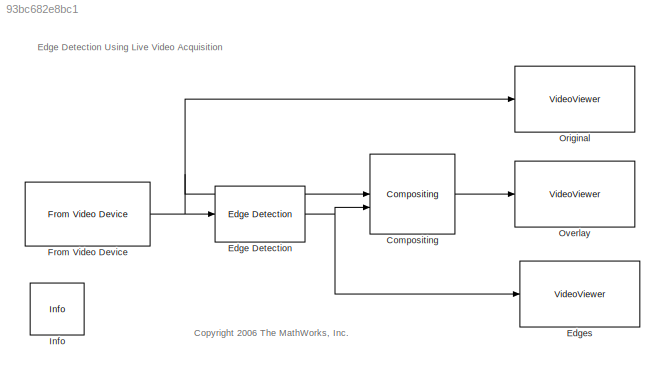
MODEL slx_93bc682e8bc1
KIND model
CONFIG AbsTol = auto
CONFIG EnableMultiTasking = on
CONFIG FixedStep = auto
CONFIG MaxStep = auto
CONFIG MinStep = auto
CONFIG RelTol = 1e-3
CONFIG SampleTimeConstraint = Unconstrained
CONFIG SolverName = FixedStepDiscrete
CONFIG StartTime = 0.0
CONFIG StopTime = inf
BLOCK [Reference] Compositing  REF=visiontextngfix/Compositing
  SourceBlock = visiontextngfix/Compositing
  SourceType = Compositing
BLOCK [Reference] Edge Detection  REF=visionanalysis/Edge Detection
  SourceBlock = visionanalysis/Edge Detection
  SourceType = Edge Detection
BLOCK [VideoViewer] Edges
  FigPos = [517 473 343 299]
  ScopeSpecificationString = vipscopes.VideoViewerScopeCfg('CurrentConfiguration', extmgr.ConfigurationSet(extmgr.Configuration('Core','General UI',true,'ShowSaveConfigSet',true,'FigureProperties',[],'MessageLogAutoOpenMode','for warn/fail messages'),extmgr.Configuration('Core','Source UI',true,'PlaybackToolbar',true),extmgr.Configuration('Sources','WiredSimulink',true),extmgr.Configuration('Sources','Simulink',false),extmgr....<+474ch>
  colormapValue = gray(256)
  trueSizedOnce = on
BLOCK [Reference] From Video Device  REF=imaqlib/From Video Device
  SourceBlock = imaqlib/From Video Device
  SourceType = From Video Device
  UserDataPersistent = on
BLOCK [Reference] Info  REF=vipmisc/Info
  SourceBlock = vipmisc/Info
  SourceType = Info
BLOCK [VideoViewer] Original
  FigPos = [78 476 363 305]
  ScopeSpecificationString = vipscopes.VideoViewerScopeCfg('CurrentConfiguration', extmgr.ConfigurationSet(extmgr.Configuration('Core','General UI',true,'ShowSaveConfigSet',true,'FigureProperties',[],'MessageLogAutoOpenMode','for warn/fail messages'),extmgr.Configuration('Core','Source UI',true,'PlaybackToolbar',true),extmgr.Configuration('Sources','WiredSimulink',true),extmgr.Configuration('Sources','Simulink',false),extmgr....<+473ch>
  colormapValue = gray(256)
  trueSizedOnce = on
BLOCK [VideoViewer] Overlay
  FigPos = [306 474 353 302]
  ScopeSpecificationString = vipscopes.VideoViewerScopeCfg('CurrentConfiguration', extmgr.ConfigurationSet(extmgr.Configuration('Core','General UI',true,'ShowSaveConfigSet',true,'FigureProperties',[],'MessageLogAutoOpenMode','for warn/fail messages'),extmgr.Configuration('Core','Source UI',true,'PlaybackToolbar',true),extmgr.Configuration('Sources','WiredSimulink',true),extmgr.Configuration('Sources','Simulink',false),extmgr....<+474ch>
  colormapValue = gray(256)
  trueSizedOnce = on
ANNOTATION (root): <copyright redacted>
ANNOTATION (root): Edge Detection Using Live Video Acquisition
LINE Compositing:1 -> Overlay:1
NET Edge Detection:1 -> Compositing:2, Edges:1
NET From Video Device:1 -> Compositing:1, Edge Detection:1, Original:1
note: NET lines group one-source signal fan-out (src -> all destinations, sorted); 1:1 wires keep LINE
